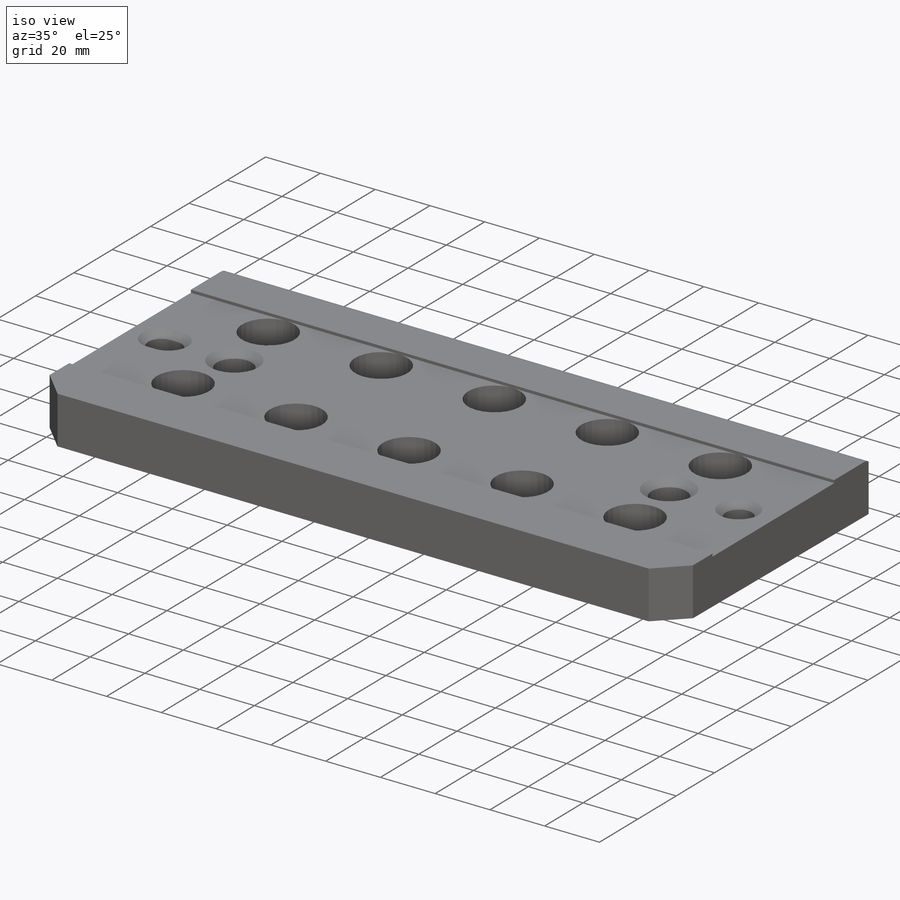
[diagram: iso view]
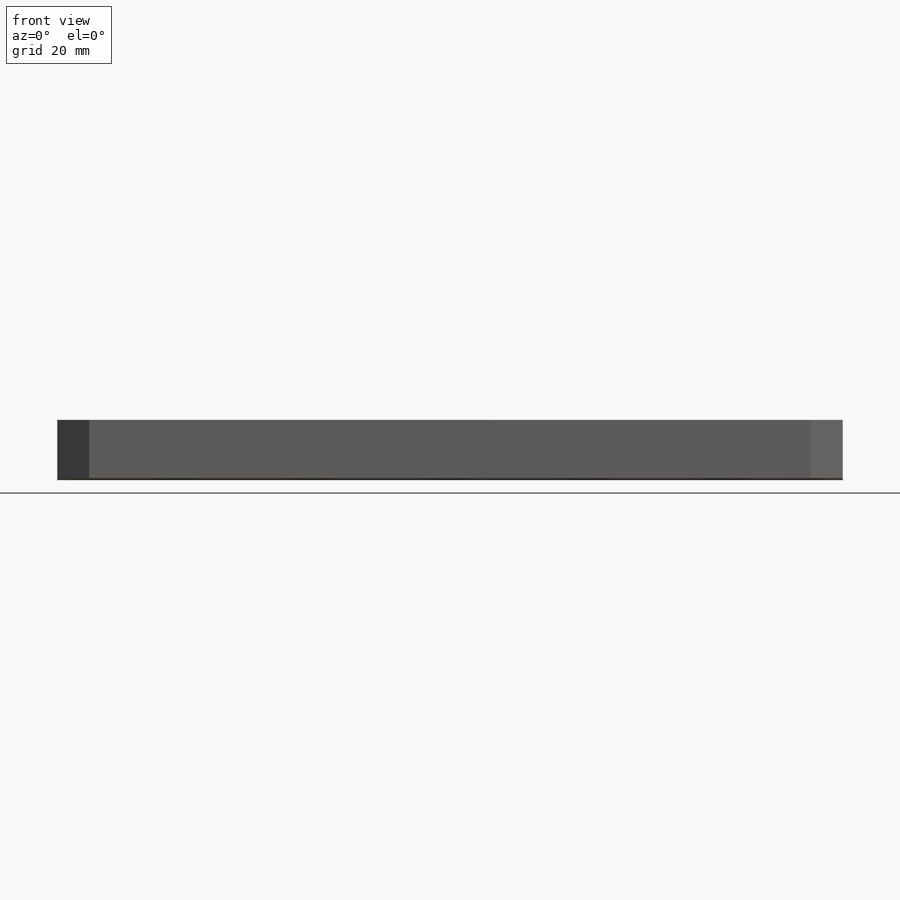
[diagram: front view]
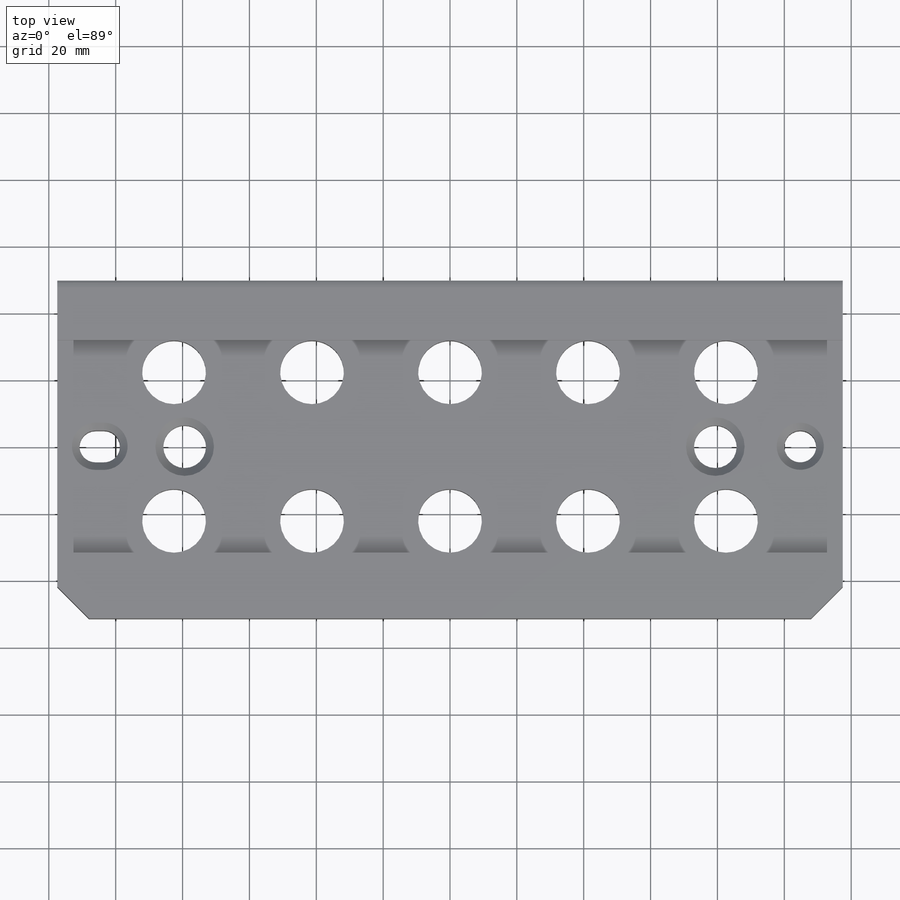
[diagram: top view]
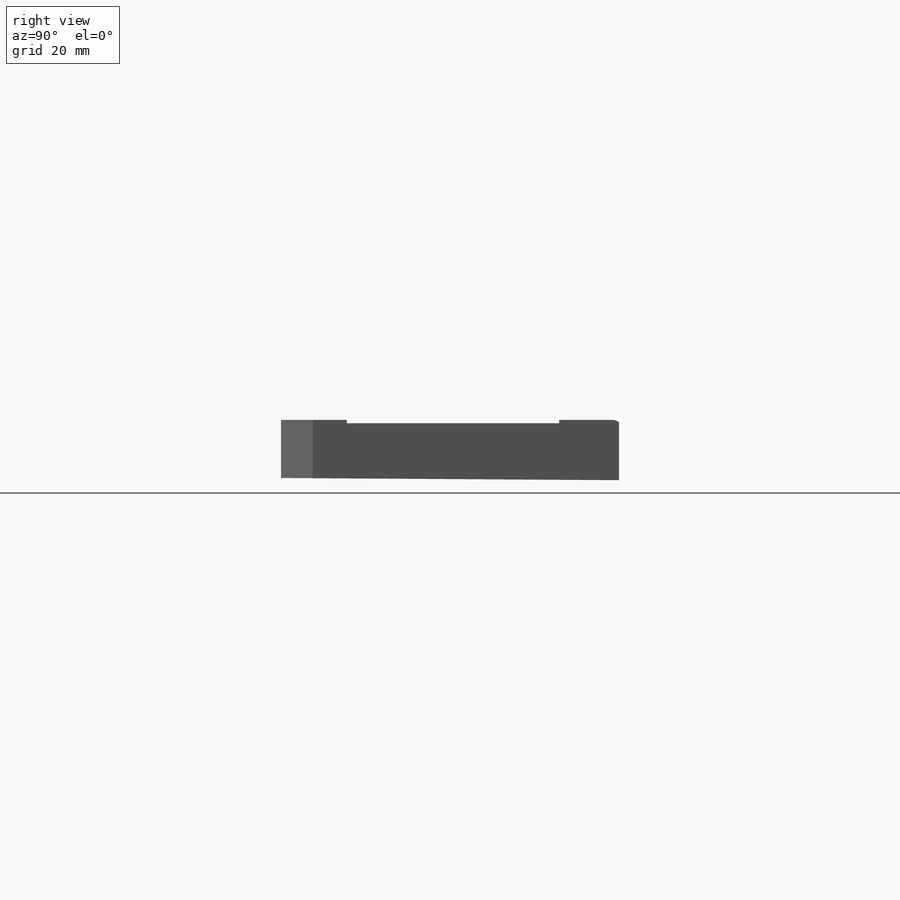
[diagram: right view]
SOLIDWORKS PART (.sldprt)
format: sldprt  version: not decoded by parser v0  size: 1,145,344 bytes
history: native  units: mm
features: sketch x11, cut_extrude x3, hole x3, chamfer x3, extrude x2, material x1 + 1 further entry (+13 scaffold rows collapsed)
feature tree (37):
  scaffold x13  (default folders/planes/origin — collapsed)
  material  "304 SSTL"
  "Origin"  ID=-1
  sketch  "Sketch1"  dims[D1=19.05mm D2=95.25mm D3=3.81mm]
  extrude  "Extrude1"  Depth=234.95mm
  sketch  "Sketch6"  dims[c1.D1=15.875mm c1.D2=15.875mm c1.D3=25.4mm c2.D2=19.685mm c2.D1=83.185mm]
  cut_extrude  "Extrude2"  Depth=1.016mm
  hole  "3/4 (0.75) Diameter Hole1"  Diameter=19.05mm Depth=18.034mm
  sketch  "Sketch5"  dims[D1=41.275mm D2=25.4mm D3=44.45mm]
  sketch  "Sketch4"  dims[hole-wizard template sketch: 60 standard entries collapsed; hole parameters kept: c18.Thru Hole Depth=18.034mm]
  sketch  "Sketch10"  dims[D1=3.175mm D2=2.032mm]
  extrude  "Extrude5"  [1 undecoded]
  hole  "1/2 (0.5) Diameter Hole1"  Diameter=12.7508mm Depth=18.034mm
  sketch  "Sketch29"  dims[c1.D1=38.1mm c1.D2=~162.769866mm c2.D1=79.375mm c2.D2=158.75mm]
  sketch  "Sketch28"  dims[hole-wizard template sketch: 54 standard entries collapsed; hole parameters kept: c17.Thru Hole Dia.=12.7508mm c17.Thru Hole Depth=18.034mm c17.Near C'Sink Dia.=17.526mm c17.D4=~3.666174mm c17.Near C'Sink Angle=90.0deg]
  sketch  "Sketch31"  dims[c1.D1=~105.914103mm c2.D1=0.372deg c2.D2=0.9906mm]
  cut_extrude  "Cut-Extrude2"  [1 undecoded]
  hole  "3/8 (0.375) Diameter Hole1"  Diameter=9.54278mm Depth=16.72135mm
  sketch  "Sketch16"  dims[D1=104.775mm D2=49.657mm]
  sketch  "Sketch15"  dims[hole-wizard template sketch: 55 standard entries collapsed; hole parameters kept: c17.Thru Hole Depth=~16.72135mm c17.Near C'Sink Dia.=14.224mm c17.D4=~3.666174mm c17.Near C'Sink Angle=90.0deg]
  sketch  "Sketch17"  dims[c1.D3=~4.77139mm c1.D1=2.54mm c1.D2=~9.54278mm c2.D3=11.43mm]
  cut_extrude  "Extrude10"  [1 undecoded]
  chamfer  "Chamfer36"  Distance=9.525mm Angle=45deg
  chamfer  "Chamfer8"  Distance=2.286mm Angle=45deg
  chamfer  "Chamfer37"  Distance=1.27mm Angle=45deg
decode coverage: 19 of 22 modeling features carry decoded parameters; 1 rows unclassified (native names shown)
note: ~ marks probable driven/reference dimensions
note: 3 parameter values undecoded
summary: no parameter record found for 3 features
note: suppression state not decoded; provenance and decode notes live in map.json
